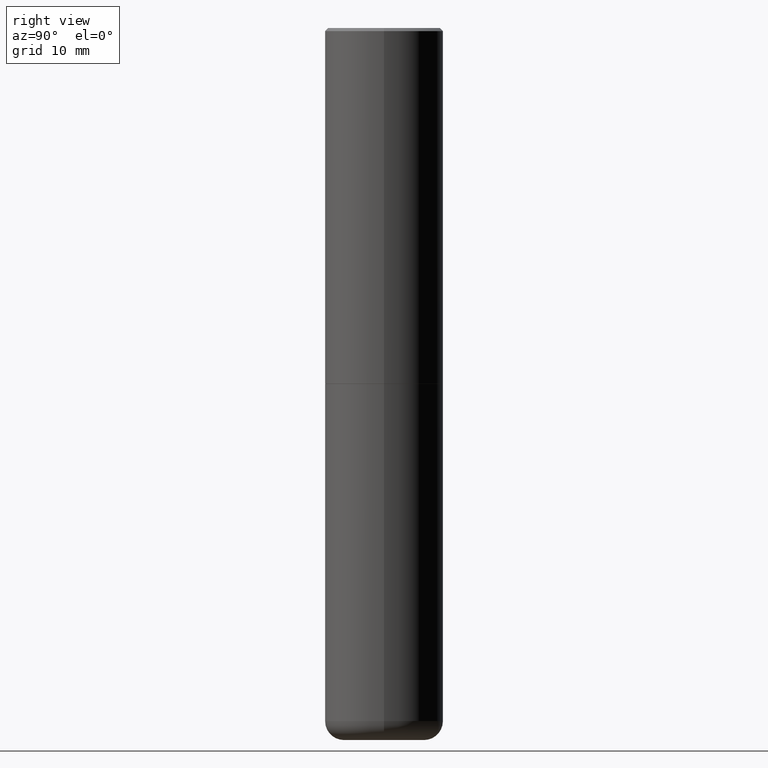
[diagram: clean part render]
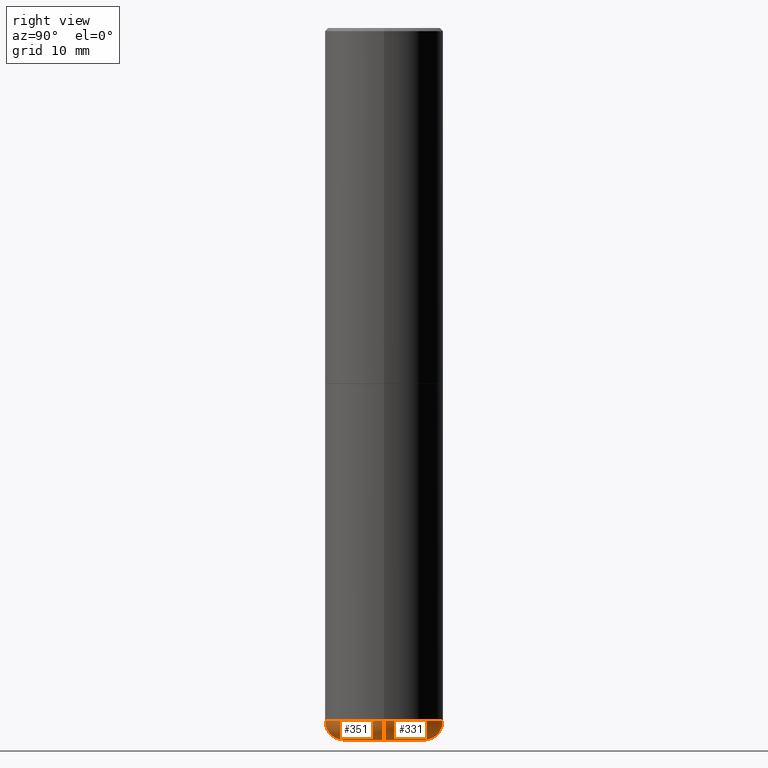
[diagram: same view with one multi-face feature highlighted, each face labeled with its STEP entity id]
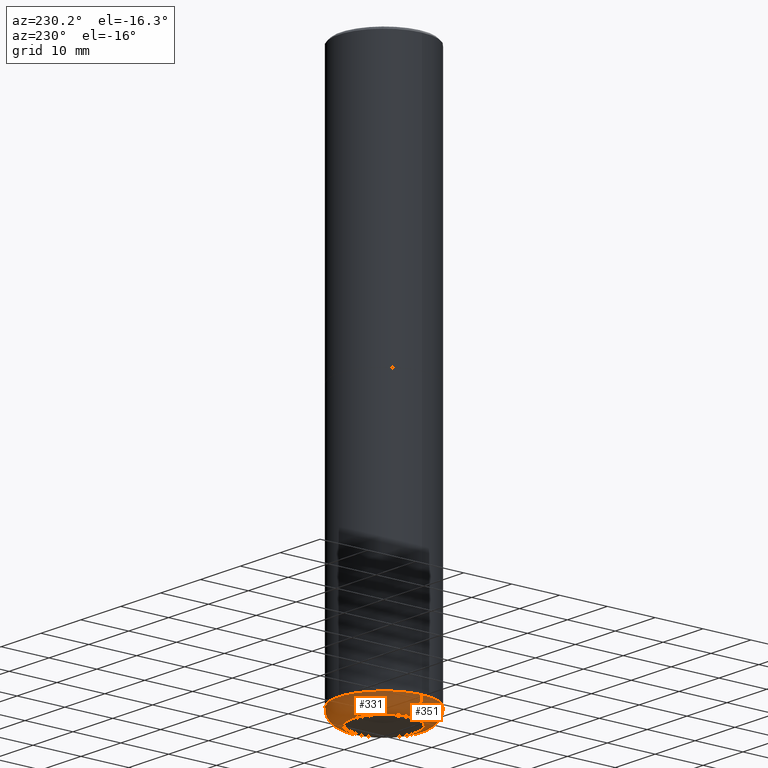
[diagram: same view with one multi-face feature highlighted, each face labeled with its STEP entity id]
A machine part, right view. The highlighted faces form ONE feature: a constant-radius fillet chain: 2 tangent blend faces with common blend radius 3.048 mm. The faces share edges in the B-rep.
A second angle (auxiliary view) of the same feature is appended — it is thin or edge-on in the first view.
Their STEP definitions:
[1] entity #331 (Torus):
#13 = CIRCLE ( 'NONE', #376, 0.1200000000000002176 ) ;
#25 = DIRECTION ( 'NONE',  ( 1.000000000000000000, -6.982962677686261189E-15, 0.000000000000000000 ) ) ;
#27 = CARTESIAN_POINT ( 'NONE',  ( 0.2550000000000000044, -1.707334374694297701E-14, -4.379999999999999893 ) ) ;
#42 = DIRECTION ( 'NONE',  ( 1.000000000000000000, -6.982962677686269077E-15, 4.883557194083113462E-29 ) ) ;
#62 = CARTESIAN_POINT ( 'NONE',  ( -0.2550000000000000044, -1.326396752681925022E-14, -4.500000000000000888 ) ) ;
#74 = TOROIDAL_SURFACE ( 'NONE', #100, 0.2550000000000000044, 0.1200000000000001898 ) ;
#93 = FACE_OUTER_BOUND ( 'NONE', #220, .T. ) ;
#100 = AXIS2_PLACEMENT_3D ( 'NONE', #324, #103, #42 ) ;
#103 = DIRECTION ( 'NONE',  ( -2.445468806185136597E-29, 3.491481338843145583E-15, 1.000000000000000000 ) ) ;
#109 = CIRCLE ( 'NONE', #368, 0.3750000000000000555 ) ;
#111 = DIRECTION ( 'NONE',  ( -1.000000000000000000, 7.105427357600994759E-15, 0.000000000000000000 ) ) ;
#117 = CARTESIAN_POINT ( 'NONE',  ( -0.3750000000000001110, -1.262815300503259983E-14, -4.379999999999999893 ) ) ;
#118 = EDGE_CURVE ( 'NONE', #215, #285, #410, .T. ) ;
#129 = AXIS2_PLACEMENT_3D ( 'NONE', #269, #401, #111 ) ;
#130 = ORIENTED_EDGE ( 'NONE', *, *, #198, .T. ) ;
#155 = DIRECTION ( 'NONE',  ( -6.982962677686266711E-15, -1.000000000000000000, 3.491481338843145583E-15 ) ) ;
#168 = ORIENTED_EDGE ( 'NONE', *, *, #118, .T. ) ;
#187 = DIRECTION ( 'NONE',  ( 1.000000000000000000, -6.982962677686260400E-15, 0.000000000000000000 ) ) ;
#198 = EDGE_CURVE ( 'NONE', #418, #215, #356, .T. ) ;
#202 = EDGE_CURVE ( 'NONE', #418, #315, #13, .T. ) ;
#215 = VERTEX_POINT ( 'NONE', #62 ) ;
#220 = EDGE_LOOP ( 'NONE', ( #130, #168, #261, #346 ) ) ;
#231 = EDGE_CURVE ( 'NONE', #315, #285, #109, .T. ) ;
#243 = CARTESIAN_POINT ( 'NONE',  ( 1.100460962783311693E-28, -1.571166602479415690E-14, -4.500000000000000888 ) ) ;
#246 = CARTESIAN_POINT ( 'NONE',  ( 0.3750000000000001110, -1.791129926826532712E-14, -4.379999999999999893 ) ) ;
#256 = CARTESIAN_POINT ( 'NONE',  ( 0.2550000000000000044, -1.749232150760415365E-14, -4.500000000000000888 ) ) ;
#261 = ORIENTED_EDGE ( 'NONE', *, *, #231, .F. ) ;
#269 = CARTESIAN_POINT ( 'NONE',  ( -0.2550000000000000044, -1.348080428794472239E-14, -4.379999999999999893 ) ) ;
#276 = DIRECTION ( 'NONE',  ( -2.445468806185136597E-29, 3.491481338843145583E-15, 1.000000000000000000 ) ) ;
#285 = VERTEX_POINT ( 'NONE', #117 ) ;
#290 = AXIS2_PLACEMENT_3D ( 'NONE', #243, #378, #187 ) ;
#314 = CARTESIAN_POINT ( 'NONE',  ( 1.071115337109089838E-28, -1.529268826413297711E-14, -4.379999999999999893 ) ) ;
#315 = VERTEX_POINT ( 'NONE', #246 ) ;
#324 = CARTESIAN_POINT ( 'NONE',  ( 1.071115337109089838E-28, -1.529268826413297711E-14, -4.379999999999999893 ) ) ;
#331 = ADVANCED_FACE ( 'NONE', ( #93 ), #74, .T. ) ;
#343 = DIRECTION ( 'NONE',  ( 1.000000000000000000, -6.982962677686272233E-15, 0.000000000000000000 ) ) ;
#346 = ORIENTED_EDGE ( 'NONE', *, *, #202, .F. ) ;
#356 = CIRCLE ( 'NONE', #290, 0.2550000000000000044 ) ;
#368 = AXIS2_PLACEMENT_3D ( 'NONE', #314, #276, #25 ) ;
#376 = AXIS2_PLACEMENT_3D ( 'NONE', #27, #155, #343 ) ;
#378 = DIRECTION ( 'NONE',  ( -2.445468806185136597E-29, 3.491481338843145583E-15, 1.000000000000000000 ) ) ;
#401 = DIRECTION ( 'NONE',  ( 7.105427357601001859E-15, 1.000000000000000000, -3.491481338843145583E-15 ) ) ;
#410 = CIRCLE ( 'NONE', #129, 0.1200000000000002176 ) ;
#418 = VERTEX_POINT ( 'NONE', #256 ) ;
[2] entity #351 (Torus):
#7 = DIRECTION ( 'NONE',  ( -2.445468806185136597E-29, 3.491481338843145583E-15, 1.000000000000000000 ) ) ;
#13 = CIRCLE ( 'NONE', #376, 0.1200000000000002176 ) ;
#27 = CARTESIAN_POINT ( 'NONE',  ( 0.2550000000000000044, -1.707334374694297701E-14, -4.379999999999999893 ) ) ;
#62 = CARTESIAN_POINT ( 'NONE',  ( -0.2550000000000000044, -1.326396752681925022E-14, -4.500000000000000888 ) ) ;
#68 = ORIENTED_EDGE ( 'NONE', *, *, #297, .T. ) ;
#111 = DIRECTION ( 'NONE',  ( -1.000000000000000000, 7.105427357600994759E-15, 0.000000000000000000 ) ) ;
#117 = CARTESIAN_POINT ( 'NONE',  ( -0.3750000000000001110, -1.262815300503259983E-14, -4.379999999999999893 ) ) ;
#118 = EDGE_CURVE ( 'NONE', #215, #285, #410, .T. ) ;
#121 = TOROIDAL_SURFACE ( 'NONE', #301, 0.2550000000000000044, 0.1200000000000001898 ) ;
#122 = CARTESIAN_POINT ( 'NONE',  ( 1.071115337109089838E-28, -1.529268826413297711E-14, -4.379999999999999893 ) ) ;
#125 = ORIENTED_EDGE ( 'NONE', *, *, #229, .F. ) ;
#126 = ORIENTED_EDGE ( 'NONE', *, *, #118, .F. ) ;
#129 = AXIS2_PLACEMENT_3D ( 'NONE', #269, #401, #111 ) ;
#150 = DIRECTION ( 'NONE',  ( 1.000000000000000000, -6.982962677686260400E-15, 0.000000000000000000 ) ) ;
#155 = DIRECTION ( 'NONE',  ( -6.982962677686266711E-15, -1.000000000000000000, 3.491481338843145583E-15 ) ) ;
#186 = DIRECTION ( 'NONE',  ( -2.445468806185136597E-29, 3.491481338843145583E-15, 1.000000000000000000 ) ) ;
#191 = DIRECTION ( 'NONE',  ( -2.445468806185136597E-29, 3.491481338843145583E-15, 1.000000000000000000 ) ) ;
#197 = CIRCLE ( 'NONE', #275, 0.3750000000000000555 ) ;
#202 = EDGE_CURVE ( 'NONE', #418, #315, #13, .T. ) ;
#207 = CIRCLE ( 'NONE', #245, 0.2550000000000000044 ) ;
#213 = EDGE_LOOP ( 'NONE', ( #126, #68, #395, #125 ) ) ;
#215 = VERTEX_POINT ( 'NONE', #62 ) ;
#218 = CARTESIAN_POINT ( 'NONE',  ( 1.100460962783311693E-28, -1.571166602479415690E-14, -4.500000000000000888 ) ) ;
#221 = DIRECTION ( 'NONE',  ( 1.000000000000000000, -6.982962677686269077E-15, 4.883557194083113462E-29 ) ) ;
#229 = EDGE_CURVE ( 'NONE', #285, #315, #197, .T. ) ;
#245 = AXIS2_PLACEMENT_3D ( 'NONE', #218, #191, #150 ) ;
#246 = CARTESIAN_POINT ( 'NONE',  ( 0.3750000000000001110, -1.791129926826532712E-14, -4.379999999999999893 ) ) ;
#247 = DIRECTION ( 'NONE',  ( 1.000000000000000000, -6.982962677686261189E-15, 0.000000000000000000 ) ) ;
#256 = CARTESIAN_POINT ( 'NONE',  ( 0.2550000000000000044, -1.749232150760415365E-14, -4.500000000000000888 ) ) ;
#269 = CARTESIAN_POINT ( 'NONE',  ( -0.2550000000000000044, -1.348080428794472239E-14, -4.379999999999999893 ) ) ;
#275 = AXIS2_PLACEMENT_3D ( 'NONE', #122, #186, #247 ) ;
#285 = VERTEX_POINT ( 'NONE', #117 ) ;
#297 = EDGE_CURVE ( 'NONE', #215, #418, #207, .T. ) ;
#301 = AXIS2_PLACEMENT_3D ( 'NONE', #321, #7, #221 ) ;
#315 = VERTEX_POINT ( 'NONE', #246 ) ;
#321 = CARTESIAN_POINT ( 'NONE',  ( 1.071115337109089838E-28, -1.529268826413297711E-14, -4.379999999999999893 ) ) ;
#343 = DIRECTION ( 'NONE',  ( 1.000000000000000000, -6.982962677686272233E-15, 0.000000000000000000 ) ) ;
#351 = ADVANCED_FACE ( 'NONE', ( #384 ), #121, .T. ) ;
#376 = AXIS2_PLACEMENT_3D ( 'NONE', #27, #155, #343 ) ;
#384 = FACE_OUTER_BOUND ( 'NONE', #213, .T. ) ;
#395 = ORIENTED_EDGE ( 'NONE', *, *, #202, .T. ) ;
#401 = DIRECTION ( 'NONE',  ( 7.105427357601001859E-15, 1.000000000000000000, -3.491481338843145583E-15 ) ) ;
#410 = CIRCLE ( 'NONE', #129, 0.1200000000000002176 ) ;
#418 = VERTEX_POINT ( 'NONE', #256 ) ;